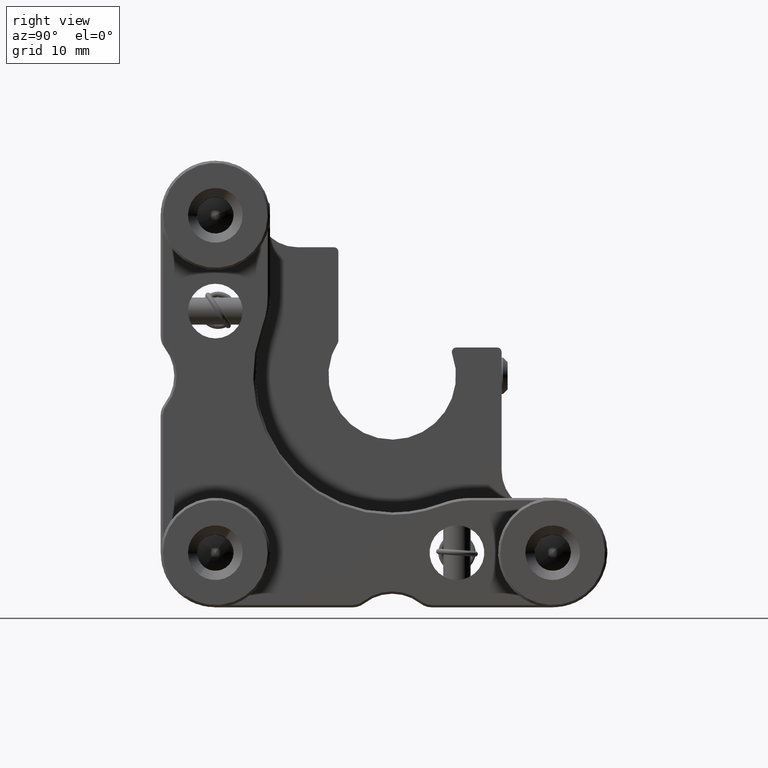
[diagram: clean part render]
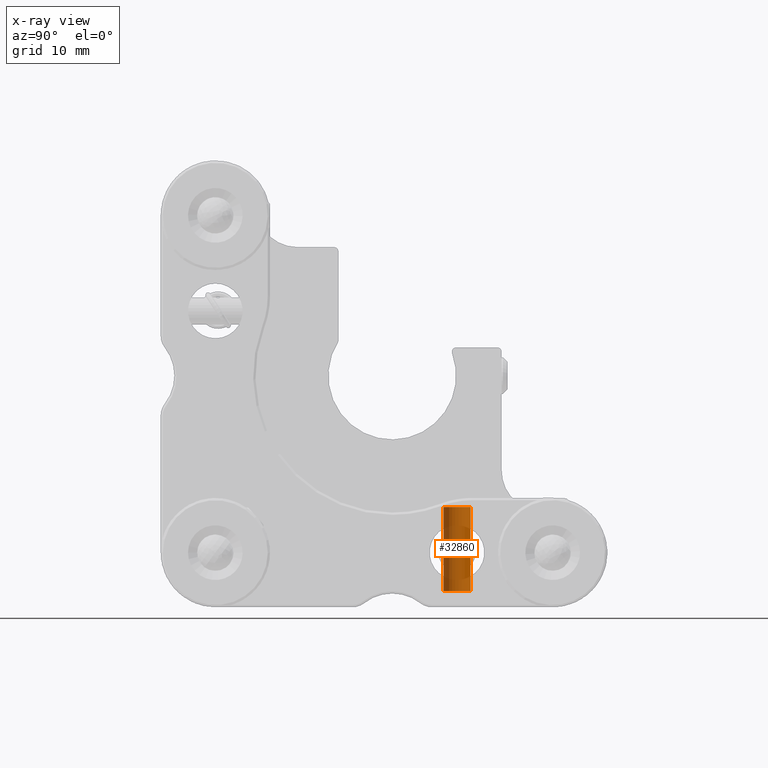
[diagram: x-ray — body ghosted, one internal face saturated and labeled with its STEP entity id]
A machine part, right view, then the same camera in x-ray: the body is ghosted and one INTERNAL B-rep face — a face not visible from any outside direction — is saturated and labeled: STEP entity #32860.
In plain terms, the highlighted cylindrical surface (edge-blend (fillet) strip) has radius 1.5 mm, axis along (-0, 0, 1).
Its self-contained STEP definition (entity closure, byte-faithful):
#179 = DIRECTION ( 'NONE',  ( -2.736911063134408342E-48, 3.728901245751884510E-16, 1.000000000000000000 ) ) ;
#336 = CARTESIAN_POINT ( 'NONE',  ( -14.00000000000000000, 7.999999999999991118, -22.75000000000000711 ) ) ;
#843 = FACE_OUTER_BOUND ( 'NONE', #30419, .T. ) ;
#912 = DIRECTION ( 'NONE',  ( 0.0000000000000000000, 1.000000000000000000, 0.0000000000000000000 ) ) ;
#1154 = DIRECTION ( 'NONE',  ( -2.736911063134408342E-48, 3.728901245751884510E-16, 1.000000000000000000 ) ) ;
#2690 = VECTOR ( 'NONE', #179, 1000.000000000000000 ) ;
#3948 = CARTESIAN_POINT ( 'NONE',  ( -14.00000000000000000, 7.999999999999994671, -13.50000000000000178 ) ) ;
#4610 = DIRECTION ( 'NONE',  ( -2.736911063134408342E-48, 3.728901245751884510E-16, 1.000000000000000000 ) ) ;
#4628 = CIRCLE ( 'NONE', #39273, 1.499999999999999556 ) ;
#5047 = DIRECTION ( 'NONE',  ( 0.0000000000000000000, 1.000000000000000000, 0.0000000000000000000 ) ) ;
#7118 = CARTESIAN_POINT ( 'NONE',  ( -14.00000000000000000, 6.499999999999991118, -22.75000000000000711 ) ) ;
#7562 = CYLINDRICAL_SURFACE ( 'NONE', #8289, 1.500000000000000444 ) ;
#7783 = DIRECTION ( 'NONE',  ( 0.0000000000000000000, -1.000000000000000000, 0.0000000000000000000 ) ) ;
#8289 = AXIS2_PLACEMENT_3D ( 'NONE', #24485, #40102, #7783 ) ;
#12096 = VERTEX_POINT ( 'NONE', #7118 ) ;
#13415 = CARTESIAN_POINT ( 'NONE',  ( -14.00000000000000000, 9.499999999999991118, -23.00000000000000000 ) ) ;
#14615 = CARTESIAN_POINT ( 'NONE',  ( -14.00000000000000000, 6.499999999999991118, -23.00000000000000000 ) ) ;
#15030 = LINE ( 'NONE', #14615, #32385 ) ;
#17200 = DIRECTION ( 'NONE',  ( 2.736911063134408342E-48, -3.728901245751884510E-16, -1.000000000000000000 ) ) ;
#18481 = AXIS2_PLACEMENT_3D ( 'NONE', #3948, #17200, #912 ) ;
#18832 = ORIENTED_EDGE ( 'NONE', *, *, #22427, .F. ) ;
#22414 = VERTEX_POINT ( 'NONE', #41855 ) ;
#22427 = EDGE_CURVE ( 'NONE', #34465, #22414, #24949, .T. ) ;
#24485 = CARTESIAN_POINT ( 'NONE',  ( -14.00000000000000000, 7.999999999999991118, -23.00000000000000000 ) ) ;
#24949 = LINE ( 'NONE', #13415, #2690 ) ;
#26056 = CIRCLE ( 'NONE', #18481, 1.499999999999999556 ) ;
#28756 = ORIENTED_EDGE ( 'NONE', *, *, #37511, .T. ) ;
#30419 = EDGE_LOOP ( 'NONE', ( #18832, #28756, #33938, #35692 ) ) ;
#32385 = VECTOR ( 'NONE', #4610, 1000.000000000000000 ) ;
#32537 = CARTESIAN_POINT ( 'NONE',  ( -14.00000000000000000, 6.499999999999994671, -13.50000000000000178 ) ) ;
#32768 = VERTEX_POINT ( 'NONE', #32537 ) ;
#32860 = ADVANCED_FACE ( 'NONE', ( #843 ), #7562, .T. ) ;
#33927 = CARTESIAN_POINT ( 'NONE',  ( -14.00000000000000000, 9.499999999999991118, -22.75000000000000711 ) ) ;
#33938 = ORIENTED_EDGE ( 'NONE', *, *, #38451, .T. ) ;
#34465 = VERTEX_POINT ( 'NONE', #33927 ) ;
#35692 = ORIENTED_EDGE ( 'NONE', *, *, #35930, .T. ) ;
#35930 = EDGE_CURVE ( 'NONE', #32768, #22414, #26056, .T. ) ;
#37511 = EDGE_CURVE ( 'NONE', #34465, #12096, #4628, .T. ) ;
#38451 = EDGE_CURVE ( 'NONE', #12096, #32768, #15030, .T. ) ;
#39273 = AXIS2_PLACEMENT_3D ( 'NONE', #336, #1154, #5047 ) ;
#40102 = DIRECTION ( 'NONE',  ( -2.736911063134408342E-48, 3.728901245751884510E-16, 1.000000000000000000 ) ) ;
#41855 = CARTESIAN_POINT ( 'NONE',  ( -14.00000000000000000, 9.499999999999994671, -13.50000000000000178 ) ) ;